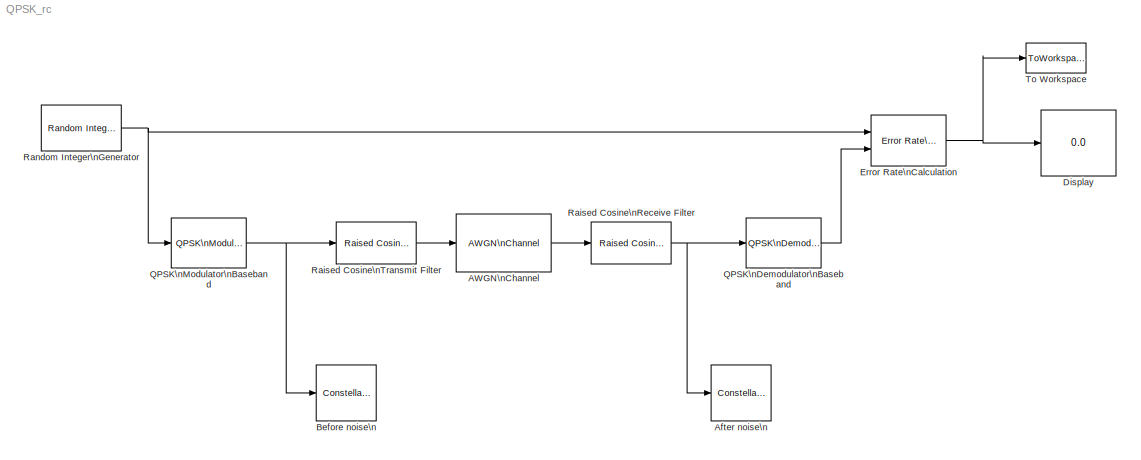
MODEL QPSK_rc
KIND model
BLOCK [Reference] AWGN\nChannel  REF=commchan3/AWGN\nChannel
  EbNodB = EbNo
  EsNodB = 10
  InputProcessing = Columns as channels (frame based)
  Ports = [1, 1]
  Ps = 1
  SID = 1
  SNRdB = 10
  SourceBlock = commchan3/AWGN\nChannel
  SourceType = AWGN Channel
  Tsym = 1
  UserData = DataTag0
  UserDataPersistent = on
  bitsPerSym = 1
  noiseMode = Signal to noise ratio  (Eb/No)
  seed = 67
  variance = 1
BLOCK [ConstellationDiagram] After noise\n
  Ports = [1]
  SID = 2
  ScopeSpecificationString = comm.scopes.ConstellationDiagramBlockCfg('CurrentConfiguration', extmgr.ConfigurationSet(extmgr.Configuration('Core','General UI',true),extmgr.Configuration('Core','Source UI',true),extmgr.Configuration('Sources','WiredSimulink',true),extmgr.Configuration('Visuals','Constellation',true,'AxesProperties',struct('Color',[0 0 0],'XColor',[0.686274509803922 0.686274509803922 0.686274509803922],'YColor'...<+676ch>
BLOCK [ConstellationDiagram] Before noise\n
  Ports = [1]
  SID = 5
  ScopeSpecificationString = comm.scopes.ConstellationDiagramBlockCfg('CurrentConfiguration', extmgr.ConfigurationSet(extmgr.Configuration('Core','General UI',true),extmgr.Configuration('Core','Source UI',true),extmgr.Configuration('Sources','WiredSimulink',true),extmgr.Configuration('Visuals','Constellation',true,'AxesProperties',struct('Color',[0 0 0],'XColor',[0.686274509803922 0.686274509803922 0.686274509803922],'YColor'...<+674ch>
BLOCK [Display] Display
  Decimation = 1
  Ports = [1]
  SID = 6
BLOCK [Reference] Error Rate\nCalculation  REF=commsink2/Error Rate\nCalculation
  N = 0
  PMode = Port
  Ports = [2, 1]
  RsMode2 = off
  SID = 7
  SourceBlock = commsink2/Error Rate\nCalculation
  SourceType = Error Rate Calculation
  WsName = ErrorVec
  cp_mode = Entire frame
  maxBits = 1e4
  numErr = 100
  st_delay = 0
  stop = on
  subframe = []
BLOCK [Reference] QPSK\nDemodulator\nBaseband  REF=commdigbbndpm3/QPSK\nDemodulator\nBaseband
  Dec = Gray
  DecType = Hard decision
  OutType = Integer
  Ph = pi/4
  Ports = [1, 1]
  SID = 11
  SourceBlock = commdigbbndpm3/QPSK\nDemodulator\nBaseband
  SourceType = QPSK Demodulator Baseband
  VarSource = Dialog
  Variance = 1
  derotateFactorDTMode = Same word length as input
  derotateFactorDataTypeStr = Inherit: Same word length as input
  derotateFactorLastDataTypeStr = Inherit: Same word length as input
  derotateFactorWordLen = 16
  outDtype1 = Inherit via internal rule
  outDtype2 = Inherit via internal rule
BLOCK [Reference] QPSK\nModulator\nBaseband  REF=commdigbbndpm3/QPSK\nModulator\nBaseband
  Enc = Gray
  InType = Integer
  Ph = pi/4
  Ports = [1, 1]
  SID = 12
  SourceBlock = commdigbbndpm3/QPSK\nModulator\nBaseband
  SourceType = QPSK Modulator Baseband
  outDataTypeStr = double
  outDtype = double
  outFracLen = 15
  outFracLenMode = Best precision
  outLastDataTypeStr = double
  outUDDataType = sfix(16)
  outWordLen = 16
BLOCK [Reference] Raised Cosine\nReceive Filter  REF=commfilt2/Raised Cosine\nReceive Filter
  D = (8)/2
  InputProcessing = Columns as channels (frame based)
  LockScale = off
  N = 8
  Ports = [1, 1]
  R = 0.2
  RateOptions = Enforce single-rate processing
  SID = 15
  SourceBlock = commfilt2/Raised Cosine\nReceive Filter
  SourceType = Raised Cosine Receive Filter
  accumDataTypeStr = Inherit: Same as product output
  accumFracLength = 30
  accumLastDataTypeStr = Inherit: Same as product output
  accumMode = Same as product output
  accumWordLength = 32
  checkCoeff = off
  checkGain = Normalized
  coeffDataTypeStr = Inherit: Same word length as input
  coeffFracLength = 15
  coeffLastDataTypeStr = Inherit: Same word length as input
  coeffMax = []
  coeffMin = []
  coeffMode = Same word length as input
  coeffWordLength = 16
  currentFiltSpan = 8
  downFactor = 8
  downOffset = 0
  filtSpan = 8
  filtType = Square root
  filterGain = 1
  framing = Mute
  inputOffset = 0
  launchFVT = on
  outputDataTypeStr = Inherit: Same as accumulator
  outputFracLength = 15
  outputLastDataTypeStr = Inherit: Same as accumulator
  outputMax = []
  outputMin = []
  outputMode = Same as accumulator
  outputWordLength = 16
  overflowMode = off
  prodOutputDataTypeStr = Inherit: Same as input
  prodOutputFracLength = 30
  prodOutputLastDataTypeStr = Inherit: Same as input
  prodOutputMode = Same as input
  prodOutputWordLength = 32
  rateMode = Downsampling
  roundingMode = Floor
  sampMode = Mute
  saveAsFlag = 0
  variableName = rcRxFilt
BLOCK [Reference] Raised Cosine\nTransmit Filter  REF=commfilt2/Raised Cosine\nTransmit Filter
  D = (8)/2
  InputProcessing = Columns as channels (frame based)
  LockScale = off
  N = 8
  Ports = [1, 1]
  R = 0.2
  RateOptions = Enforce single-rate processing
  SID = 14
  SourceBlock = commfilt2/Raised Cosine\nTransmit Filter
  SourceType = Raised Cosine Transmit Filter
  accumDataTypeStr = Inherit: Inherit via internal rule
  accumFracLength = 30
  accumLastDataTypeStr = Inherit: Inherit via internal rule
  accumMode = Inherit via internal rule
  accumWordLength = 32
  checkCoeff = off
  checkGain = Normalized
  coeffDataTypeStr = Inherit: Same word length as input
  coeffFracLength = 15
  coeffLastDataTypeStr = Inherit: Same word length as input
  coeffMax = []
  coeffMin = []
  coeffMode = Same word length as input
  coeffWordLength = 16
  currentFiltSpan = 8
  filtSpan = 8
  filtType = Square root
  filterGain = 1
  framing = Mute
  launchFVT = on
  outputDataTypeStr = Inherit: Same as accumulator
  outputFracLength = 15
  outputLastDataTypeStr = Inherit: Same as accumulator
  outputMax = []
  outputMin = []
  outputMode = Same as accumulator
  outputWordLength = 16
  overflowMode = off
  prodOutputDataTypeStr = Inherit: Inherit via internal rule
  prodOutputFracLength = 30
  prodOutputLastDataTypeStr = Inherit: Inherit via internal rule
  prodOutputMode = Inherit via internal rule
  prodOutputWordLength = 32
  roundingMode = Floor
  sampMode = Mute
  saveAsFlag = 0
  variableName = rcTxFilt
BLOCK [Reference] Random Integer\nGenerator  REF=commrandsrc3/Random Integer\nGenerator
  OutputDataType = double
  Ports = [0, 1]
  SID = 10
  SampleTime = 1
  SamplesPerFrame = 100
  Seed = 37
  SeedSource = Parameter
  SetSize = 4
  SimulateUsing = Interpreted execution
  SourceBlock = commrandsrc3/Random Integer\nGenerator
  SourceType = Random Integer Generator
BLOCK [ToWorkspace] To Workspace
  FixptAsFi = on
  MaxDataPoints = 2
  Ports = [1]
  SID = 13
  SampleTime = -1
  Save2DSignal = 2-D array (concatenate along first dimension)
  VariableName = qpskBER
LINE AWGN\nChannel:1 -> Raised Cosine\nReceive Filter:1
NET Error Rate\nCalculation:1 -> Display:1, To Workspace:1
LINE QPSK\nDemodulator\nBaseband:1 -> Error Rate\nCalculation:2
NET QPSK\nModulator\nBaseband:1 -> Before noise\n:1, Raised Cosine\nTransmit Filter:1
NET Raised Cosine\nReceive Filter:1 -> After noise\n:1, QPSK\nDemodulator\nBaseband:1
LINE Raised Cosine\nTransmit Filter:1 -> AWGN\nChannel:1
NET Random Integer\nGenerator:1 -> Error Rate\nCalculation:1, QPSK\nModulator\nBaseband:1
note: NET lines group one-source signal fan-out (src -> all destinations, sorted); 1:1 wires keep LINE
